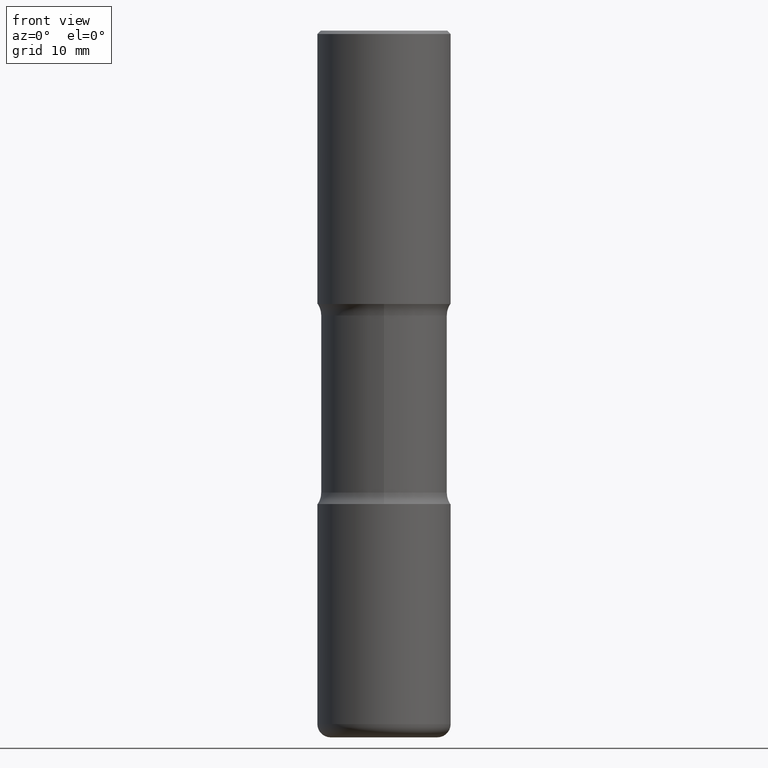
[diagram: clean part render]
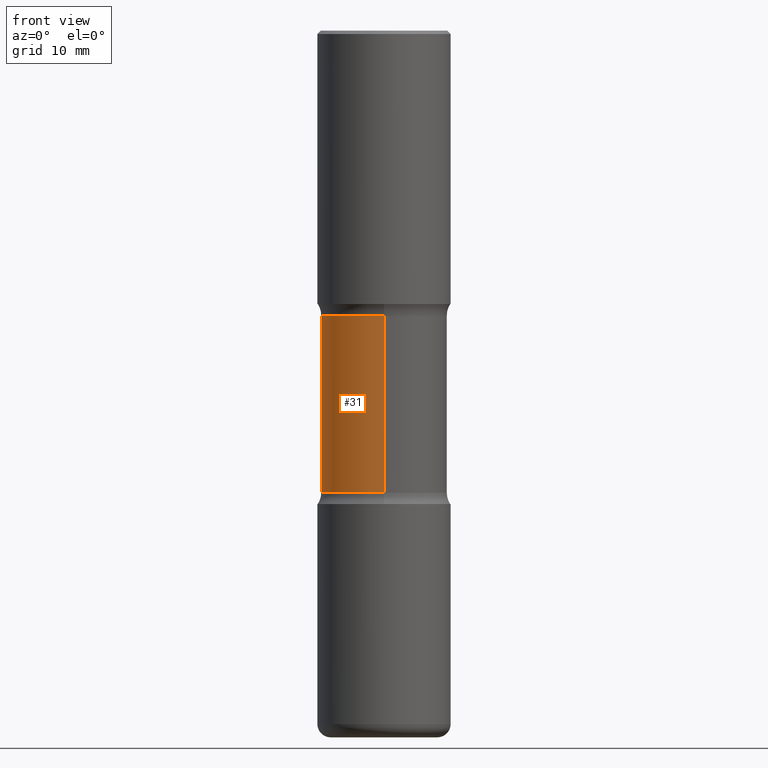
[diagram: same view with one face highlighted and labeled with its STEP entity id]
A machine part, front view. The second image highlights one B-rep face of the part: STEP entity #31.
In plain terms, the highlighted cylindrical surface (partial cylindrical patch) has radius 9.4869 mm, axis along (0, -0, -1).
Its self-contained STEP definition (entity closure, byte-faithful):
#9 = CYLINDRICAL_SURFACE ( 'NONE', #358, 0.3735000000000001097 ) ;
#13 = DIRECTION ( 'NONE',  ( 6.982962677686265922E-15, 1.000000000000000000, -2.925673888797068529E-15 ) ) ;
#20 = CARTESIAN_POINT ( 'NONE',  ( 2.608136560115886865E-15, 0.3734999999999905618, -2.727068069159902741 ) ) ;
#31 = ADVANCED_FACE ( 'NONE', ( #352 ), #9, .T. ) ;
#48 = EDGE_CURVE ( 'NONE', #330, #78, #250, .T. ) ;
#64 = VERTEX_POINT ( 'NONE', #393 ) ;
#78 = VERTEX_POINT ( 'NONE', #20 ) ;
#95 = AXIS2_PLACEMENT_3D ( 'NONE', #180, #136, #13 ) ;
#97 = VECTOR ( 'NONE', #424, 39.37007874015748143 ) ;
#117 = ORIENTED_EDGE ( 'NONE', *, *, #506, .T. ) ;
#136 = DIRECTION ( 'NONE',  ( 2.497382066111305685E-29, -3.417138595909611452E-15, -1.000000000000000000 ) ) ;
#159 = CARTESIAN_POINT ( 'NONE',  ( 4.056067910974230799E-29, -5.956222493193065901E-15, -1.682231930840099476 ) ) ;
#163 = LINE ( 'NONE', #339, #97 ) ;
#174 = CARTESIAN_POINT ( 'NONE',  ( 1.027696689415007474E-28, -1.446820562349780459E-14, -4.173200000000000465 ) ) ;
#175 = ORIENTED_EDGE ( 'NONE', *, *, #488, .F. ) ;
#180 = CARTESIAN_POINT ( 'NONE',  ( 6.665422944839096374E-29, -9.526572387846816848E-15, -2.727068069159901409 ) ) ;
#181 = VECTOR ( 'NONE', #334, 39.37007874015748143 ) ;
#198 = CARTESIAN_POINT ( 'NONE',  ( -2.631687031945092870E-15, -0.3735000000000095466, -2.727068069159900521 ) ) ;
#222 = VERTEX_POINT ( 'NONE', #390 ) ;
#236 = DIRECTION ( 'NONE',  ( 6.982962677686265922E-15, 1.000000000000000000, -3.657092360996333689E-15 ) ) ;
#250 = CIRCLE ( 'NONE', #95, 0.3735000000000000542 ) ;
#262 = DIRECTION ( 'NONE',  ( 2.497382066111305685E-29, -3.417138595909611452E-15, -1.000000000000000000 ) ) ;
#296 = CARTESIAN_POINT ( 'NONE',  ( 2.608136560115923941E-15, 0.3734999999999856213, -4.173200000000001353 ) ) ;
#327 = ORIENTED_EDGE ( 'NONE', *, *, #48, .F. ) ;
#330 = VERTEX_POINT ( 'NONE', #198 ) ;
#334 = DIRECTION ( 'NONE',  ( 2.497382066111305685E-29, -3.417138595909611452E-15, -1.000000000000000000 ) ) ;
#339 = CARTESIAN_POINT ( 'NONE',  ( -2.562396002167564465E-15, -0.3735000000000145981, -4.173199999999998688 ) ) ;
#352 = FACE_OUTER_BOUND ( 'NONE', #531, .T. ) ;
#358 = AXIS2_PLACEMENT_3D ( 'NONE', #174, #262, #432 ) ;
#374 = EDGE_CURVE ( 'NONE', #64, #222, #461, .T. ) ;
#381 = LINE ( 'NONE', #296, #181 ) ;
#390 = CARTESIAN_POINT ( 'NONE',  ( 2.608136560115862805E-15, 0.3734999999999943365, -1.682231930840100809 ) ) ;
#392 = AXIS2_PLACEMENT_3D ( 'NONE', #159, #501, #236 ) ;
#393 = CARTESIAN_POINT ( 'NONE',  ( -2.631687031945122847E-15, -0.3735000000000062159, -1.682231930840098144 ) ) ;
#424 = DIRECTION ( 'NONE',  ( 2.497382066111305685E-29, -3.417138595909611452E-15, -1.000000000000000000 ) ) ;
#432 = DIRECTION ( 'NONE',  ( 6.982962677686265922E-15, 1.000000000000000000, -2.925673888797068135E-15 ) ) ;
#461 = CIRCLE ( 'NONE', #392, 0.3735000000000002762 ) ;
#488 = EDGE_CURVE ( 'NONE', #64, #330, #163, .T. ) ;
#501 = DIRECTION ( 'NONE',  ( 2.497382066111305685E-29, -3.417138595909611452E-15, -1.000000000000000000 ) ) ;
#506 = EDGE_CURVE ( 'NONE', #222, #78, #381, .T. ) ;
#531 = EDGE_LOOP ( 'NONE', ( #175, #536, #117, #327 ) ) ;
#536 = ORIENTED_EDGE ( 'NONE', *, *, #374, .T. ) ;